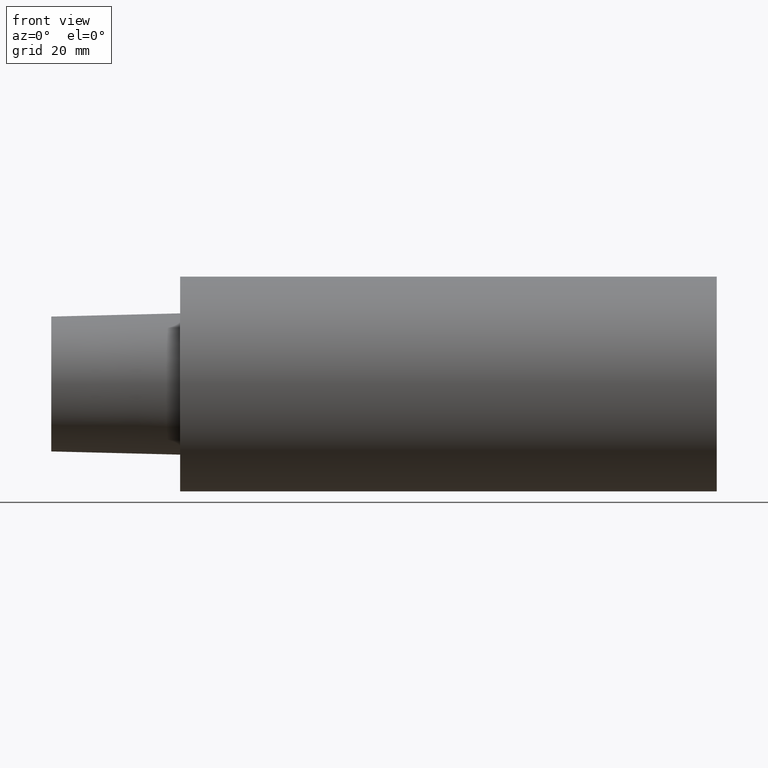
[diagram: clean part render]
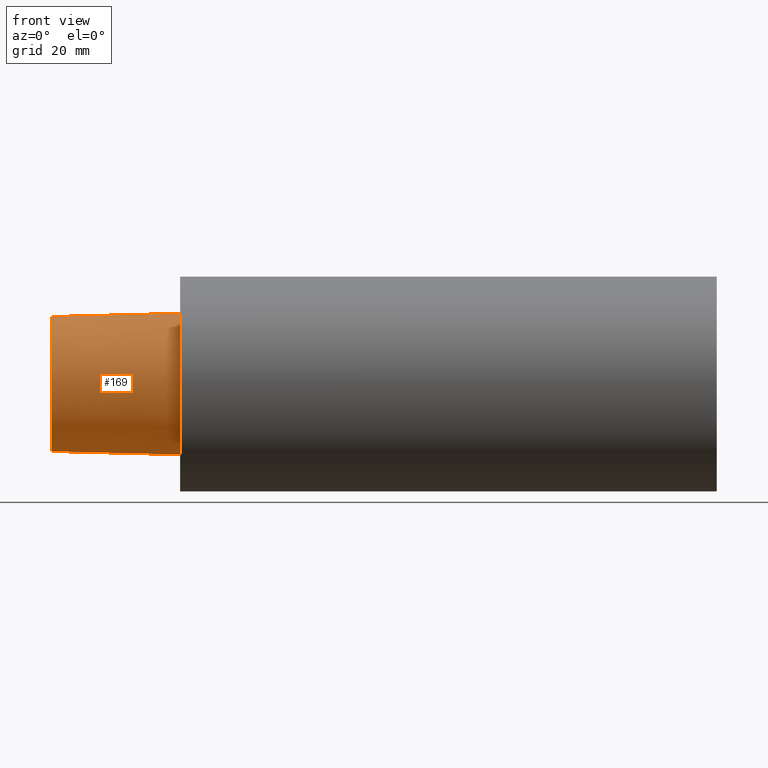
[diagram: same view with one face highlighted and labeled with its STEP entity id]
A machine part, front view. The second image highlights one B-rep face of the part: STEP entity #169.
In plain terms, the highlighted conical surface has half-angle 1.432 deg.
Its self-contained STEP definition (entity closure, byte-faithful):
#7 = CARTESIAN_POINT ( 'NONE',  ( -29.99999996940000102, 0.000000000000000000, -15.70494056296217700 ) ) ;
#15 = VERTEX_POINT ( 'NONE', #41 ) ;
#17 = DIRECTION ( 'NONE',  ( 0.000000000000000000, 0.000000000000000000, 1.000000000000000000 ) ) ;
#35 = DIRECTION ( 'NONE',  ( 1.000000000000000000, 0.000000000000000000, 0.000000000000000000 ) ) ;
#36 = CARTESIAN_POINT ( 'NONE',  ( 0.000000000000000000, 2.015157114129614578E-15, 16.45500658257258664 ) ) ;
#41 = CARTESIAN_POINT ( 'NONE',  ( 0.000000000000000000, 0.000000000000000000, -16.45500658257258664 ) ) ;
#56 = CIRCLE ( 'NONE', #198, 15.70494056296217700 ) ;
#74 = VERTEX_POINT ( 'NONE', #7 ) ;
#80 = LINE ( 'NONE', #96, #137 ) ;
#82 = EDGE_CURVE ( 'NONE', #15, #203, #98, .T. ) ;
#83 = VERTEX_POINT ( 'NONE', #242 ) ;
#88 = AXIS2_PLACEMENT_3D ( 'NONE', #186, #35, #249 ) ;
#95 = ORIENTED_EDGE ( 'NONE', *, *, #166, .T. ) ;
#96 = CARTESIAN_POINT ( 'NONE',  ( 0.000000000000000000, 2.015157114129614578E-15, 16.45500658257258664 ) ) ;
#98 = CIRCLE ( 'NONE', #171, 16.45500658257258664 ) ;
#100 = CONICAL_SURFACE ( 'NONE', #88, 16.45500658257258664, 0.02499699292341668252 ) ;
#120 = CARTESIAN_POINT ( 'NONE',  ( 0.000000000000000000, 0.000000000000000000, 0.000000000000000000 ) ) ;
#124 = DIRECTION ( 'NONE',  ( 0.000000000000000000, 0.000000000000000000, 1.000000000000000000 ) ) ;
#137 = VECTOR ( 'NONE', #226, 999.9999999999998863 ) ;
#140 = EDGE_CURVE ( 'NONE', #74, #83, #56, .T. ) ;
#148 = DIRECTION ( 'NONE',  ( 0.9996875914402667540, 0.000000000000000000, -0.02499438977767799372 ) ) ;
#150 = ORIENTED_EDGE ( 'NONE', *, *, #140, .F. ) ;
#152 = CARTESIAN_POINT ( 'NONE',  ( 0.000000000000000000, 0.000000000000000000, -16.45500658257258664 ) ) ;
#155 = ORIENTED_EDGE ( 'NONE', *, *, #82, .T. ) ;
#161 = DIRECTION ( 'NONE',  ( -1.000000000000000000, 0.000000000000000000, 0.000000000000000000 ) ) ;
#166 = EDGE_CURVE ( 'NONE', #74, #15, #229, .T. ) ;
#167 = FACE_OUTER_BOUND ( 'NONE', #191, .T. ) ;
#169 = ADVANCED_FACE ( 'NONE', ( #167 ), #100, .T. ) ;
#171 = AXIS2_PLACEMENT_3D ( 'NONE', #120, #161, #124 ) ;
#185 = ORIENTED_EDGE ( 'NONE', *, *, #196, .F. ) ;
#186 = CARTESIAN_POINT ( 'NONE',  ( 0.000000000000000000, 0.000000000000000000, 0.000000000000000000 ) ) ;
#191 = EDGE_LOOP ( 'NONE', ( #185, #150, #95, #155 ) ) ;
#192 = CARTESIAN_POINT ( 'NONE',  ( -29.99999996940000102, 0.000000000000000000, 0.000000000000000000 ) ) ;
#196 = EDGE_CURVE ( 'NONE', #83, #203, #80, .T. ) ;
#198 = AXIS2_PLACEMENT_3D ( 'NONE', #192, #209, #17 ) ;
#203 = VERTEX_POINT ( 'NONE', #36 ) ;
#209 = DIRECTION ( 'NONE',  ( -1.000000000000000000, 0.000000000000000000, 0.000000000000000000 ) ) ;
#226 = DIRECTION ( 'NONE',  ( 0.9996875914402667540, 3.060929943787468651E-18, 0.02499438977767799372 ) ) ;
#229 = LINE ( 'NONE', #152, #235 ) ;
#235 = VECTOR ( 'NONE', #148, 999.9999999999998863 ) ;
#242 = CARTESIAN_POINT ( 'NONE',  ( -29.99999996940000102, 1.969228816626358703E-15, 15.70494056296217700 ) ) ;
#249 = DIRECTION ( 'NONE',  ( 0.000000000000000000, 0.000000000000000000, -1.000000000000000000 ) ) ;